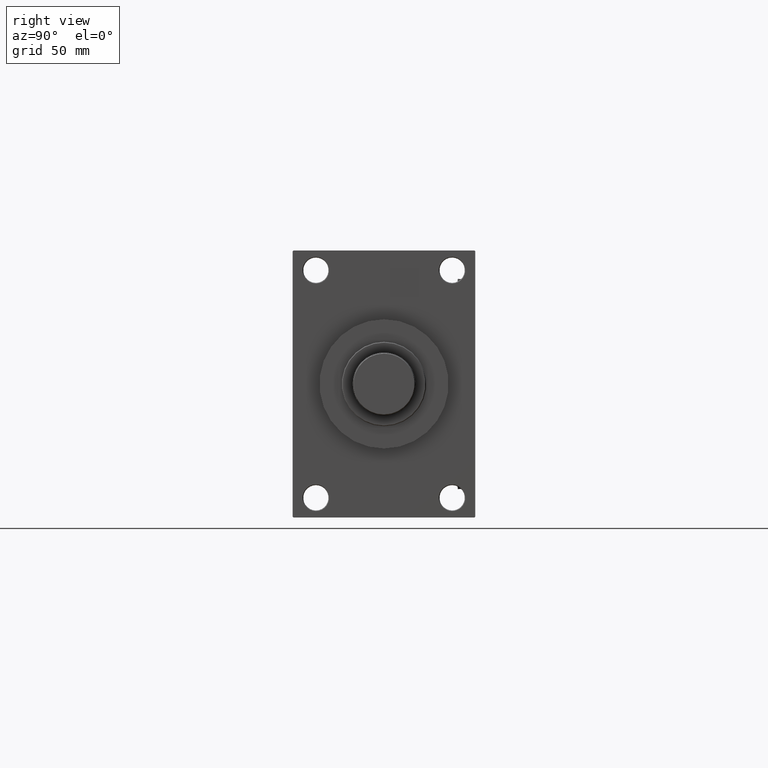
[diagram: clean part render]
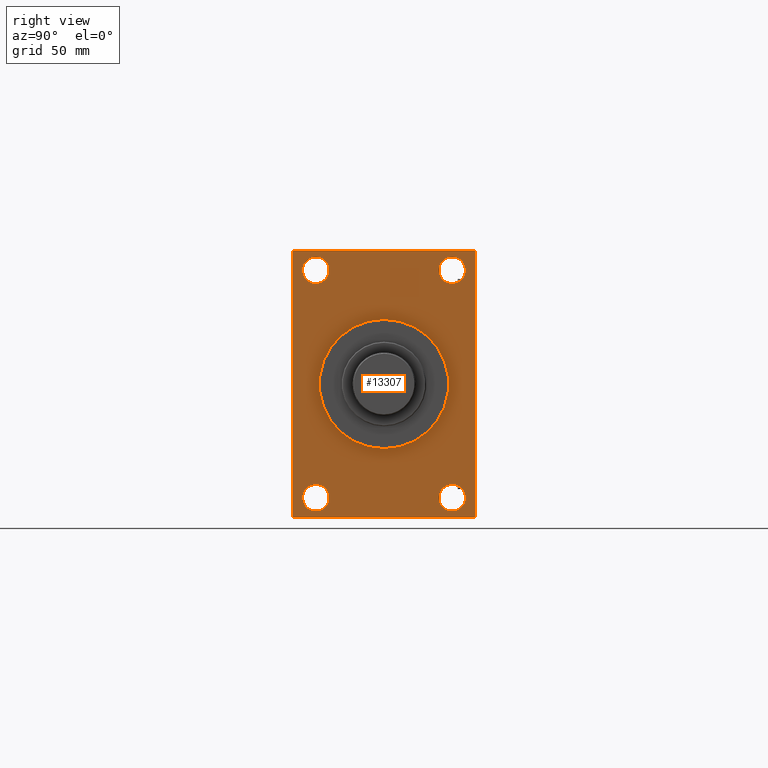
[diagram: same view with one face highlighted and labeled with its STEP entity id]
A machine part, right view. The second image highlights one B-rep face of the part: STEP entity #13307.
In plain terms, the highlighted planar face has unit normal (-1, 0, 0).
Its self-contained STEP definition (entity closure, byte-faithful):
#106 = ORIENTED_EDGE ( 'NONE', *, *, #47428, .F. ) ;
#674 = ORIENTED_EDGE ( 'NONE', *, *, #9278, .T. ) ;
#799 = DIRECTION ( 'NONE',  ( 0.000000000000000000, 0.000000000000000000, 1.000000000000000000 ) ) ;
#1091 = DIRECTION ( 'NONE',  ( 0.000000000000000000, -0.7071067811865474617, 0.7071067811865474617 ) ) ;
#1127 = VERTEX_POINT ( 'NONE', #25679 ) ;
#1553 = CARTESIAN_POINT ( 'NONE',  ( 346.0000000000000000, -48.49999999999999289, -81.00000000000001421 ) ) ;
#1649 = CARTESIAN_POINT ( 'NONE',  ( 346.0000000000000000, -65.00000000000001421, 94.49999999999997158 ) ) ;
#1717 = EDGE_CURVE ( 'NONE', #43966, #29867, #46272, .T. ) ;
#2075 = DIRECTION ( 'NONE',  ( -1.000000000000000000, 0.000000000000000000, -0.000000000000000000 ) ) ;
#2108 = LINE ( 'NONE', #48670, #46743 ) ;
#2559 = CIRCLE ( 'NONE', #26906, 9.500000000000008882 ) ;
#2670 = EDGE_CURVE ( 'NONE', #43232, #12793, #43053, .T. ) ;
#3238 = ORIENTED_EDGE ( 'NONE', *, *, #1717, .T. ) ;
#4053 = VERTEX_POINT ( 'NONE', #40728 ) ;
#4088 = CIRCLE ( 'NONE', #8152, 9.500000000000008882 ) ;
#4154 = EDGE_CURVE ( 'NONE', #4053, #8363, #22381, .T. ) ;
#4540 = FACE_BOUND ( 'NONE', #24065, .T. ) ;
#6251 = DIRECTION ( 'NONE',  ( 0.000000000000000000, 0.000000000000000000, 1.000000000000000000 ) ) ;
#6431 = VECTOR ( 'NONE', #9937, 1000.000000000000000 ) ;
#6717 = DIRECTION ( 'NONE',  ( 0.000000000000000000, -1.000000000000000000, 0.000000000000000000 ) ) ;
#6875 = CARTESIAN_POINT ( 'NONE',  ( 346.0000000000000000, 64.99999999999998579, -95.00000000000001421 ) ) ;
#6963 = CARTESIAN_POINT ( 'NONE',  ( 346.0000000000000000, 48.50000000000000711, 71.50000000000000000 ) ) ;
#7930 = CARTESIAN_POINT ( 'NONE',  ( 346.0000000000000000, -48.49999999999999289, -90.50000000000002842 ) ) ;
#8152 = AXIS2_PLACEMENT_3D ( 'NONE', #1553, #30881, #799 ) ;
#8267 = DIRECTION ( 'NONE',  ( 0.000000000000000000, 0.000000000000000000, 1.000000000000000000 ) ) ;
#8316 = AXIS2_PLACEMENT_3D ( 'NONE', #30031, #2075, #33618 ) ;
#8363 = VERTEX_POINT ( 'NONE', #1649 ) ;
#8464 = CARTESIAN_POINT ( 'NONE',  ( 346.0000000000000000, -48.50000000000000000, 71.50000000000000000 ) ) ;
#8896 = AXIS2_PLACEMENT_3D ( 'NONE', #25727, #13791, #29043 ) ;
#9278 = EDGE_CURVE ( 'NONE', #27418, #32658, #41551, .T. ) ;
#9937 = DIRECTION ( 'NONE',  ( -0.000000000000000000, -0.7071067811865378028, -0.7071067811865573427 ) ) ;
#10302 = CARTESIAN_POINT ( 'NONE',  ( 346.0000000000000000, -64.50000000000001421, -95.00000000000002842 ) ) ;
#10340 = CARTESIAN_POINT ( 'NONE',  ( 346.0000000000000000, -48.49999999999999289, -81.00000000000001421 ) ) ;
#10408 = AXIS2_PLACEMENT_3D ( 'NONE', #46959, #12090, #39341 ) ;
#10491 = AXIS2_PLACEMENT_3D ( 'NONE', #20459, #35469, #8267 ) ;
#10952 = CARTESIAN_POINT ( 'NONE',  ( 346.0000000000000000, -65.00000000000001421, -94.50000000000002842 ) ) ;
#11378 = VECTOR ( 'NONE', #17097, 1000.000000000000114 ) ;
#11382 = ORIENTED_EDGE ( 'NONE', *, *, #31561, .F. ) ;
#11619 = ORIENTED_EDGE ( 'NONE', *, *, #45723, .T. ) ;
#12044 = CARTESIAN_POINT ( 'NONE',  ( 346.0000000000000000, -64.50000000000001421, -95.00000000000002842 ) ) ;
#12090 = DIRECTION ( 'NONE',  ( -1.000000000000000000, 0.000000000000000000, -0.000000000000000000 ) ) ;
#12332 = DIRECTION ( 'NONE',  ( 1.000000000000000000, 0.000000000000000000, 0.000000000000000000 ) ) ;
#12682 = DIRECTION ( 'NONE',  ( 0.000000000000000000, 7.304098846218135653E-17, -1.000000000000000000 ) ) ;
#12793 = VERTEX_POINT ( 'NONE', #36441 ) ;
#12841 = CIRCLE ( 'NONE', #10408, 9.500000000000008882 ) ;
#12843 = EDGE_CURVE ( 'NONE', #39415, #47490, #28790, .T. ) ;
#13307 = ADVANCED_FACE ( 'NONE', ( #4540, #15970, #24102, #19302, #23597, #20048 ), #34815, .F. ) ;
#13791 = DIRECTION ( 'NONE',  ( -1.000000000000000000, 0.000000000000000000, -0.000000000000000000 ) ) ;
#14174 = ORIENTED_EDGE ( 'NONE', *, *, #12843, .T. ) ;
#14949 = ORIENTED_EDGE ( 'NONE', *, *, #31498, .T. ) ;
#15495 = EDGE_CURVE ( 'NONE', #36858, #35457, #45155, .T. ) ;
#15524 = CARTESIAN_POINT ( 'NONE',  ( 346.0000000000000000, 0.000000000000000000, 0.000000000000000000 ) ) ;
#15970 = FACE_BOUND ( 'NONE', #49559, .T. ) ;
#16182 = CARTESIAN_POINT ( 'NONE',  ( 346.0000000000000000, -48.49999999999999289, -71.50000000000001421 ) ) ;
#16266 = CIRCLE ( 'NONE', #39819, 9.500000000000008882 ) ;
#16433 = AXIS2_PLACEMENT_3D ( 'NONE', #15524, #22646, #18593 ) ;
#16546 = EDGE_LOOP ( 'NONE', ( #11382, #106 ) ) ;
#17097 = DIRECTION ( 'NONE',  ( -0.000000000000000000, 0.7071067811865965336, 0.7071067811864985009 ) ) ;
#17251 = ORIENTED_EDGE ( 'NONE', *, *, #20498, .F. ) ;
#17271 = CARTESIAN_POINT ( 'NONE',  ( 346.0000000000000000, 64.99999999999997158, 94.99999999999997158 ) ) ;
#17355 = CARTESIAN_POINT ( 'NONE',  ( 346.0000000000000000, 5.633375276077824704E-15, -46.00000000000000000 ) ) ;
#18060 = ORIENTED_EDGE ( 'NONE', *, *, #19528, .T. ) ;
#18200 = CARTESIAN_POINT ( 'NONE',  ( 346.0000000000000000, 0.000000000000000000, 46.00000000000000000 ) ) ;
#18593 = DIRECTION ( 'NONE',  ( 0.000000000000000000, 0.000000000000000000, -1.000000000000000000 ) ) ;
#19141 = AXIS2_PLACEMENT_3D ( 'NONE', #27169, #42942, #42462 ) ;
#19302 = FACE_BOUND ( 'NONE', #23305, .T. ) ;
#19315 = LINE ( 'NONE', #6875, #44585 ) ;
#19528 = EDGE_CURVE ( 'NONE', #1127, #31359, #12841, .T. ) ;
#20048 = FACE_OUTER_BOUND ( 'NONE', #25505, .T. ) ;
#20447 = ORIENTED_EDGE ( 'NONE', *, *, #43937, .T. ) ;
#20459 = CARTESIAN_POINT ( 'NONE',  ( 346.0000000000000000, 48.50000000000000711, 81.00000000000000000 ) ) ;
#20479 = DIRECTION ( 'NONE',  ( 0.000000000000000000, 0.000000000000000000, -1.000000000000000000 ) ) ;
#20498 = EDGE_CURVE ( 'NONE', #39415, #35457, #19315, .T. ) ;
#21486 = DIRECTION ( 'NONE',  ( -1.000000000000000000, 0.000000000000000000, -0.000000000000000000 ) ) ;
#21987 = CARTESIAN_POINT ( 'NONE',  ( 346.0000000000000000, 48.50000000000000711, 81.00000000000000000 ) ) ;
#22381 = LINE ( 'NONE', #41738, #6431 ) ;
#22646 = DIRECTION ( 'NONE',  ( 1.000000000000000000, 0.000000000000000000, 0.000000000000000000 ) ) ;
#22862 = VECTOR ( 'NONE', #12682, 1000.000000000000000 ) ;
#23305 = EDGE_LOOP ( 'NONE', ( #3238, #11619 ) ) ;
#23597 = FACE_BOUND ( 'NONE', #16546, .T. ) ;
#24065 = EDGE_LOOP ( 'NONE', ( #34130, #18060 ) ) ;
#24102 = FACE_BOUND ( 'NONE', #43586, .T. ) ;
#24885 = ORIENTED_EDGE ( 'NONE', *, *, #29574, .F. ) ;
#25356 = DIRECTION ( 'NONE',  ( 0.000000000000000000, 0.000000000000000000, 1.000000000000000000 ) ) ;
#25505 = EDGE_LOOP ( 'NONE', ( #33951, #32055, #17251, #14174, #24885, #30960, #20447, #29670 ) ) ;
#25575 = EDGE_CURVE ( 'NONE', #31359, #1127, #41391, .T. ) ;
#25679 = CARTESIAN_POINT ( 'NONE',  ( 346.0000000000000000, -48.50000000000000000, 90.50000000000001421 ) ) ;
#25727 = CARTESIAN_POINT ( 'NONE',  ( 346.0000000000000000, -48.50000000000000000, 81.00000000000000000 ) ) ;
#25764 = LINE ( 'NONE', #34675, #36553 ) ;
#25805 = DIRECTION ( 'NONE',  ( 0.000000000000000000, 0.7071067811865474617, -0.7071067811865474617 ) ) ;
#26523 = VECTOR ( 'NONE', #25805, 1000.000000000000114 ) ;
#26906 = AXIS2_PLACEMENT_3D ( 'NONE', #10340, #29668, #25356 ) ;
#27169 = CARTESIAN_POINT ( 'NONE',  ( 346.0000000000000000, 0.000000000000000000, 0.000000000000000000 ) ) ;
#27418 = VERTEX_POINT ( 'NONE', #38436 ) ;
#28267 = CARTESIAN_POINT ( 'NONE',  ( 346.0000000000000000, 64.49999999999997158, 94.99999999999997158 ) ) ;
#28790 = LINE ( 'NONE', #29034, #11378 ) ;
#29034 = CARTESIAN_POINT ( 'NONE',  ( 346.0000000000000000, 64.99999999999998579, -94.49999999999997158 ) ) ;
#29043 = DIRECTION ( 'NONE',  ( 0.000000000000000000, 0.000000000000000000, 1.000000000000000000 ) ) ;
#29194 = LINE ( 'NONE', #17271, #22862 ) ;
#29375 = ORIENTED_EDGE ( 'NONE', *, *, #48317, .T. ) ;
#29574 = EDGE_CURVE ( 'NONE', #43232, #47490, #29194, .T. ) ;
#29668 = DIRECTION ( 'NONE',  ( -1.000000000000000000, 0.000000000000000000, -0.000000000000000000 ) ) ;
#29670 = ORIENTED_EDGE ( 'NONE', *, *, #4154, .T. ) ;
#29801 = VERTEX_POINT ( 'NONE', #16182 ) ;
#29867 = VERTEX_POINT ( 'NONE', #41352 ) ;
#30031 = CARTESIAN_POINT ( 'NONE',  ( 346.0000000000000000, 48.50000000000000711, -81.00000000000001421 ) ) ;
#30881 = DIRECTION ( 'NONE',  ( -1.000000000000000000, 0.000000000000000000, -0.000000000000000000 ) ) ;
#30960 = ORIENTED_EDGE ( 'NONE', *, *, #2670, .T. ) ;
#31359 = VERTEX_POINT ( 'NONE', #8464 ) ;
#31498 = EDGE_CURVE ( 'NONE', #32658, #27418, #35146, .T. ) ;
#31561 = EDGE_CURVE ( 'NONE', #42966, #50025, #36747, .T. ) ;
#32055 = ORIENTED_EDGE ( 'NONE', *, *, #15495, .T. ) ;
#32658 = VERTEX_POINT ( 'NONE', #39295 ) ;
#33146 = CARTESIAN_POINT ( 'NONE',  ( 346.0000000000000000, 64.99999999999997158, 94.49999999999997158 ) ) ;
#33391 = DIRECTION ( 'NONE',  ( 0.000000000000000000, 0.000000000000000000, -1.000000000000000000 ) ) ;
#33618 = DIRECTION ( 'NONE',  ( 0.000000000000000000, 0.000000000000000000, 1.000000000000000000 ) ) ;
#33697 = DIRECTION ( 'NONE',  ( 0.000000000000000000, 0.000000000000000000, 1.000000000000000000 ) ) ;
#33712 = ORIENTED_EDGE ( 'NONE', *, *, #42231, .T. ) ;
#33951 = ORIENTED_EDGE ( 'NONE', *, *, #38603, .T. ) ;
#33963 = DIRECTION ( 'NONE',  ( -1.000000000000000000, 0.000000000000000000, -0.000000000000000000 ) ) ;
#34130 = ORIENTED_EDGE ( 'NONE', *, *, #25575, .T. ) ;
#34218 = AXIS2_PLACEMENT_3D ( 'NONE', #43390, #12332, #20479 ) ;
#34675 = CARTESIAN_POINT ( 'NONE',  ( 346.0000000000000000, 64.99999999999997158, 94.99999999999997158 ) ) ;
#34815 = PLANE ( 'NONE',  #19141 ) ;
#35146 = CIRCLE ( 'NONE', #8316, 9.500000000000008882 ) ;
#35457 = VERTEX_POINT ( 'NONE', #12044 ) ;
#35469 = DIRECTION ( 'NONE',  ( -1.000000000000000000, 0.000000000000000000, -0.000000000000000000 ) ) ;
#36441 = CARTESIAN_POINT ( 'NONE',  ( 346.0000000000000000, 64.49999999999997158, 94.99999999999997158 ) ) ;
#36553 = VECTOR ( 'NONE', #6717, 1000.000000000000000 ) ;
#36747 = CIRCLE ( 'NONE', #16433, 46.00000000000000000 ) ;
#36858 = VERTEX_POINT ( 'NONE', #10952 ) ;
#37466 = CIRCLE ( 'NONE', #34218, 46.00000000000000000 ) ;
#37906 = DIRECTION ( 'NONE',  ( 0.000000000000000000, -1.000000000000000000, -1.067522139062650425E-16 ) ) ;
#38436 = CARTESIAN_POINT ( 'NONE',  ( 346.0000000000000000, 48.50000000000000711, -71.50000000000001421 ) ) ;
#38603 = EDGE_CURVE ( 'NONE', #8363, #36858, #2108, .T. ) ;
#38861 = VECTOR ( 'NONE', #1091, 1000.000000000000114 ) ;
#39295 = CARTESIAN_POINT ( 'NONE',  ( 346.0000000000000000, 48.50000000000000711, -90.50000000000002842 ) ) ;
#39341 = DIRECTION ( 'NONE',  ( 0.000000000000000000, 0.000000000000000000, 1.000000000000000000 ) ) ;
#39415 = VERTEX_POINT ( 'NONE', #47489 ) ;
#39819 = AXIS2_PLACEMENT_3D ( 'NONE', #21987, #21486, #33697 ) ;
#40728 = CARTESIAN_POINT ( 'NONE',  ( 346.0000000000000000, -64.50000000000002842, 94.99999999999997158 ) ) ;
#41352 = CARTESIAN_POINT ( 'NONE',  ( 346.0000000000000000, 48.50000000000000711, 90.50000000000001421 ) ) ;
#41391 = CIRCLE ( 'NONE', #8896, 9.500000000000008882 ) ;
#41551 = CIRCLE ( 'NONE', #42386, 9.500000000000008882 ) ;
#41738 = CARTESIAN_POINT ( 'NONE',  ( 346.0000000000000000, -65.00000000000001421, 94.49999999999997158 ) ) ;
#42231 = EDGE_CURVE ( 'NONE', #43416, #29801, #4088, .T. ) ;
#42386 = AXIS2_PLACEMENT_3D ( 'NONE', #46169, #33963, #6251 ) ;
#42462 = DIRECTION ( 'NONE',  ( -0.000000000000000000, 0.000000000000000000, 1.000000000000000000 ) ) ;
#42942 = DIRECTION ( 'NONE',  ( -1.000000000000000000, 0.000000000000000000, -0.000000000000000000 ) ) ;
#42966 = VERTEX_POINT ( 'NONE', #18200 ) ;
#43053 = LINE ( 'NONE', #28267, #38861 ) ;
#43232 = VERTEX_POINT ( 'NONE', #33146 ) ;
#43390 = CARTESIAN_POINT ( 'NONE',  ( 346.0000000000000000, 0.000000000000000000, 0.000000000000000000 ) ) ;
#43416 = VERTEX_POINT ( 'NONE', #7930 ) ;
#43586 = EDGE_LOOP ( 'NONE', ( #14949, #674 ) ) ;
#43878 = CARTESIAN_POINT ( 'NONE',  ( 346.0000000000000000, 64.99999999999998579, -94.49999999999997158 ) ) ;
#43937 = EDGE_CURVE ( 'NONE', #12793, #4053, #25764, .T. ) ;
#43966 = VERTEX_POINT ( 'NONE', #6963 ) ;
#44585 = VECTOR ( 'NONE', #37906, 1000.000000000000000 ) ;
#45155 = LINE ( 'NONE', #10302, #26523 ) ;
#45723 = EDGE_CURVE ( 'NONE', #29867, #43966, #16266, .T. ) ;
#46169 = CARTESIAN_POINT ( 'NONE',  ( 346.0000000000000000, 48.50000000000000711, -81.00000000000001421 ) ) ;
#46272 = CIRCLE ( 'NONE', #10491, 9.500000000000008882 ) ;
#46743 = VECTOR ( 'NONE', #33391, 1000.000000000000000 ) ;
#46959 = CARTESIAN_POINT ( 'NONE',  ( 346.0000000000000000, -48.50000000000000000, 81.00000000000000000 ) ) ;
#47428 = EDGE_CURVE ( 'NONE', #50025, #42966, #37466, .T. ) ;
#47489 = CARTESIAN_POINT ( 'NONE',  ( 346.0000000000000000, 64.49999999999987210, -95.00000000000001421 ) ) ;
#47490 = VERTEX_POINT ( 'NONE', #43878 ) ;
#48317 = EDGE_CURVE ( 'NONE', #29801, #43416, #2559, .T. ) ;
#48670 = CARTESIAN_POINT ( 'NONE',  ( 346.0000000000000000, -65.00000000000001421, 94.99999999999997158 ) ) ;
#49559 = EDGE_LOOP ( 'NONE', ( #33712, #29375 ) ) ;
#50025 = VERTEX_POINT ( 'NONE', #17355 ) ;